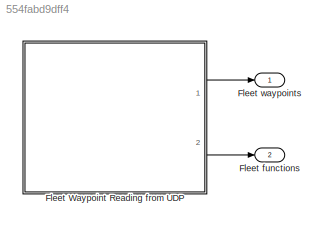
MODEL slx_554fabd9dff4
KIND model
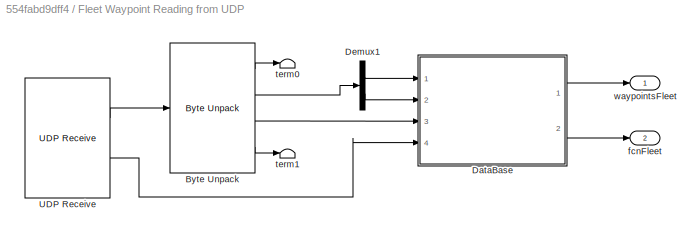
BLOCK [SubSystem] Fleet Waypoint Reading from UDP
  FunctionWithSeparateData = off
  MaskHideContents = off
  MinAlgLoopOccurrences = off
  Opaque = off
  Ports = [0, 2]
  PropExecContextOutsideSubsystem = off
  RTWSystemCode = Auto
  RequestExecContextInheritance = off
BLOCK [Reference] Fleet Waypoint Reading from UDP/Byte Unpack  REF=etargetslib/Byte Unpack
  Ports = [1, 4]
  SourceBlock = etargetslib/Byte Unpack
  SourceType = Byte Unpack
  byteAlign = 1
  datatypes = {'uint8', 'uint16', 'double','uint16'}
  dimensions = {[3],[2],[30], [1]}
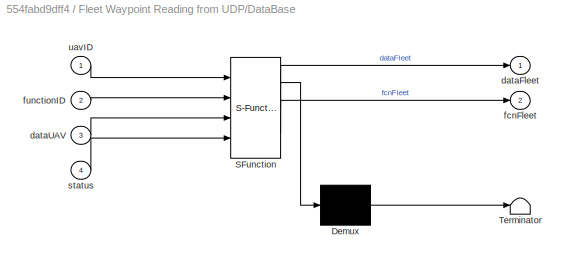
BLOCK [SubSystem] Fleet Waypoint Reading from UDP/DataBase 
  ErrorFcn = Stateflow.Translate.translate
  FunctionWithSeparateData = off
  MaskHideContents = off
  MinAlgLoopOccurrences = off
  Opaque = off
  PermitHierarchicalResolution = ExplicitOnly
  Ports = [4, 2]
  PropExecContextOutsideSubsystem = off
  RTWSystemCode = Auto
  RequestExecContextInheritance = off
  SFBlockType = MATLAB Function
  TreatAsAtomicUnit = on
BLOCK [Demux] Fleet Waypoint Reading from UDP/DataBase / Demux 
  Outputs = 1
  Ports = [1, 1]
BLOCK [S-Function] Fleet Waypoint Reading from UDP/DataBase / SFunction 
  EnableBusSupport = on
  FunctionName = sf_sfun
  PortCounts = [4 3]
  Ports = [4, 3]
  Tag = Stateflow S-Function UAVFleetNetRead 2
BLOCK [Terminator] Fleet Waypoint Reading from UDP/DataBase / Terminator 
BLOCK [Outport] Fleet Waypoint Reading from UDP/DataBase /dataFleet
  IconDisplay = Port number
BLOCK [Inport] Fleet Waypoint Reading from UDP/DataBase /dataUAV
  IconDisplay = Port number
  Port = 3
BLOCK [Outport] Fleet Waypoint Reading from UDP/DataBase /fcnFleet
  IconDisplay = Port number
  Port = 2
BLOCK [Inport] Fleet Waypoint Reading from UDP/DataBase /functionID
  IconDisplay = Port number
  Port = 2
BLOCK [Inport] Fleet Waypoint Reading from UDP/DataBase /status
  IconDisplay = Port number
  Port = 4
BLOCK [Inport] Fleet Waypoint Reading from UDP/DataBase /uavID
  IconDisplay = Port number
BLOCK [Demux] Fleet Waypoint Reading from UDP/Demux1
  DisplayOption = bar
  Outputs = 2
  Ports = [1, 2]
BLOCK [Reference] Fleet Waypoint Reading from UDP/UDP Receive  REF=instrumentlib/UDP Receive
  ByteOrder = BigEndian
  DataSize = [249    1]
  DataType = uint8
  EnableBlockingMode = off
  Host = localhost
  LocalPort = 9040
  Port = 9040
  Ports = [0, 2]
  SampleTime = 0.02
  SourceBlock = instrumentlib/UDP Receive
  SourceType = UDP Receive
  Timeout = 10
BLOCK [Outport] Fleet Waypoint Reading from UDP/fcnFleet
  IconDisplay = Port number
  Port = 2
BLOCK [Terminator] Fleet Waypoint Reading from UDP/term0
BLOCK [Terminator] Fleet Waypoint Reading from UDP/term1
BLOCK [Outport] Fleet Waypoint Reading from UDP/waypointsFleet
  IconDisplay = Port number
BLOCK [Outport] Fleet functions
  IconDisplay = Port number
  Port = 2
BLOCK [Outport] Fleet waypoints
  IconDisplay = Port number
LINE Fleet Waypoint Reading from UDP/Byte Unpack:1 -> Fleet Waypoint Reading from UDP/term0:1
LINE Fleet Waypoint Reading from UDP/Byte Unpack:2 -> Fleet Waypoint Reading from UDP/Demux1:1
LINE Fleet Waypoint Reading from UDP/Byte Unpack:3 -> Fleet Waypoint Reading from UDP/DataBase :3
LINE Fleet Waypoint Reading from UDP/Byte Unpack:4 -> Fleet Waypoint Reading from UDP/term1:1
LINE Fleet Waypoint Reading from UDP/DataBase :1 -> Fleet Waypoint Reading from UDP/waypointsFleet:1
LINE Fleet Waypoint Reading from UDP/DataBase :2 -> Fleet Waypoint Reading from UDP/fcnFleet:1
LINE Fleet Waypoint Reading from UDP/Demux1:1 -> Fleet Waypoint Reading from UDP/DataBase :1
LINE Fleet Waypoint Reading from UDP/Demux1:2 -> Fleet Waypoint Reading from UDP/DataBase :2
LINE Fleet Waypoint Reading from UDP/UDP Receive:1 -> Fleet Waypoint Reading from UDP/Byte Unpack:1
LINE Fleet Waypoint Reading from UDP/UDP Receive:2 -> Fleet Waypoint Reading from UDP/DataBase :4
LINE Fleet Waypoint Reading from UDP:1 -> Fleet waypoints:1
LINE Fleet Waypoint Reading from UDP:2 -> Fleet functions:1
